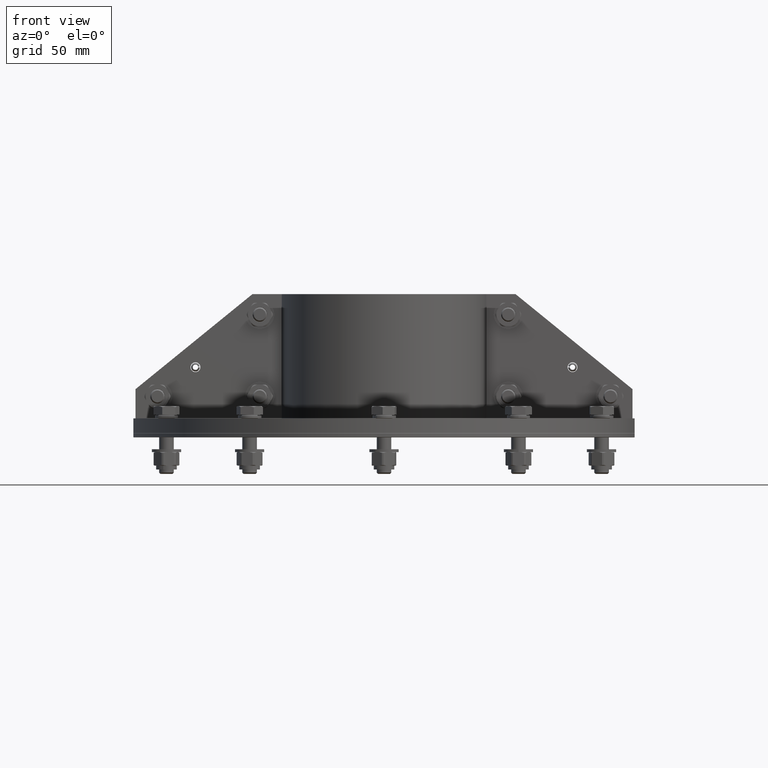
[diagram: clean part render]
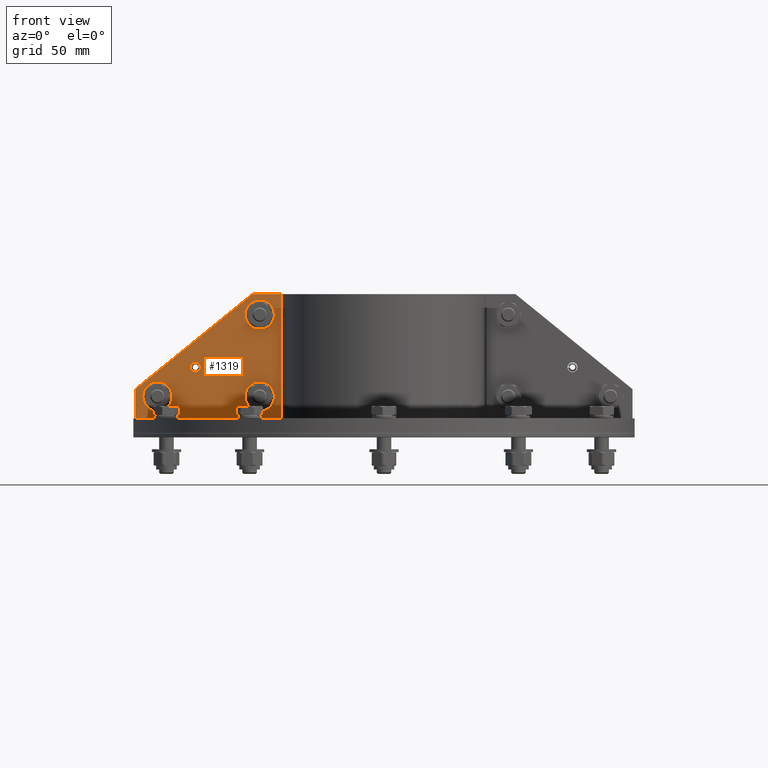
[diagram: same view with one face highlighted and labeled with its STEP entity id]
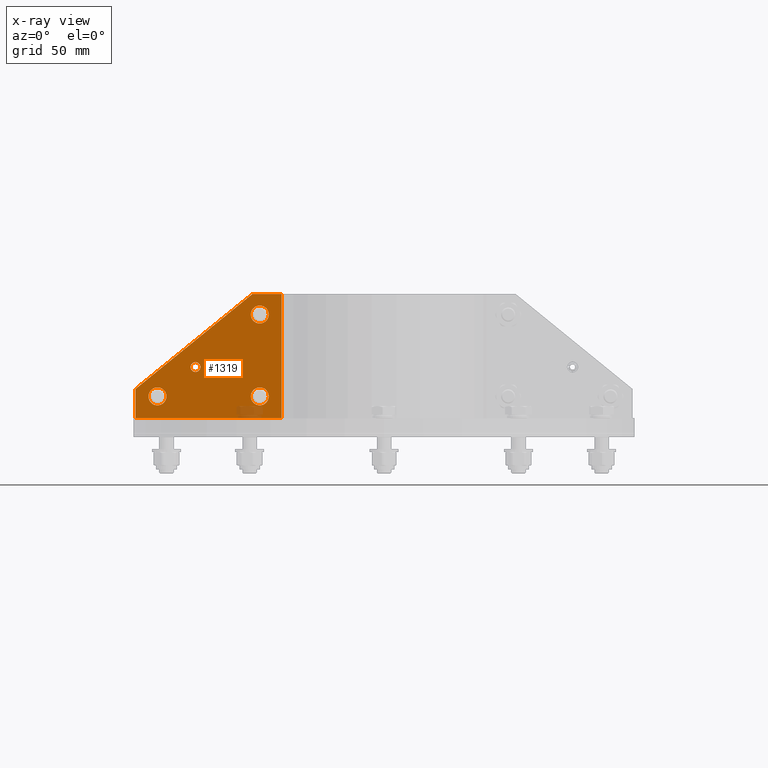
[diagram: x-ray of the same camera — body ghosted, the highlighted face saturated]
A machine part, front view. The second image highlights one B-rep face of the part: STEP entity #1319.
The next image is the same camera in x-ray: the body ghosted, the highlighted face saturated — about 3% of this face is hidden behind the body in this view.
In plain terms, the highlighted planar face has unit normal (-0, 1, -0).
Its self-contained STEP definition (entity closure, byte-faithful):
#1153=CARTESIAN_POINT('',(21.150000000000002,71.0,-5.0));
#1154=VERTEX_POINT('',#1153);
#1155=CARTESIAN_POINT('',(15.0,71.0,-5.0));
#1156=DIRECTION('',(0.0,0.0,1.0));
#1157=DIRECTION('',(-1.0,0.0,0.0));
#1158=AXIS2_PLACEMENT_3D('',#1155,#1156,#1157);
#1159=CIRCLE('',#1158,6.150000000000001);
#1160=EDGE_CURVE('',#1154,#1154,#1159,.T.);
#1181=CARTESIAN_POINT('',(91.150000000000006,15.000000000000002,-5.0));
#1182=VERTEX_POINT('',#1181);
#1183=CARTESIAN_POINT('',(85.0,15.000000000000002,-5.0));
#1184=DIRECTION('',(0.0,0.0,1.0));
#1185=DIRECTION('',(-1.0,0.0,0.0));
#1186=AXIS2_PLACEMENT_3D('',#1183,#1184,#1185);
#1187=CIRCLE('',#1186,6.150000000000001);
#1188=EDGE_CURVE('',#1182,#1182,#1187,.T.);
#1209=CARTESIAN_POINT('',(21.150000000000002,15.000000000000002,-5.0));
#1210=VERTEX_POINT('',#1209);
#1211=CARTESIAN_POINT('',(15.0,15.000000000000002,-5.0));
#1212=DIRECTION('',(0.0,0.0,1.0));
#1213=DIRECTION('',(-1.0,0.0,0.0));
#1214=AXIS2_PLACEMENT_3D('',#1211,#1212,#1213);
#1215=CIRCLE('',#1214,6.150000000000001);
#1216=EDGE_CURVE('',#1210,#1210,#1215,.T.);
#1237=CARTESIAN_POINT('',(62.350000000000001,35.0,-5.0));
#1238=VERTEX_POINT('',#1237);
#1239=CARTESIAN_POINT('',(59.0,35.0,-5.0));
#1240=DIRECTION('',(0.0,0.0,1.0));
#1241=DIRECTION('',(-1.0,0.0,0.0));
#1242=AXIS2_PLACEMENT_3D('',#1239,#1240,#1241);
#1243=CIRCLE('',#1242,3.35);
#1244=EDGE_CURVE('',#1238,#1238,#1243,.T.);
#1260=CARTESIAN_POINT('',(40.797228400869528,33.297228400869542,-5.0));
#1261=DIRECTION('',(0.0,0.0,1.0));
#1262=DIRECTION('',(1.0,0.0,0.0));
#1263=AXIS2_PLACEMENT_3D('',#1260,#1261,#1262);
#1264=PLANE('',#1263);
#1265=CARTESIAN_POINT('',(0.0,0.0,-5.0));
#1266=VERTEX_POINT('',#1265);
#1267=CARTESIAN_POINT('',(100.0,1.836970E-014,-5.0));
#1268=VERTEX_POINT('',#1267);
#1269=CARTESIAN_POINT('',(0.0,0.0,-5.0));
#1270=DIRECTION('',(1.0,0.0,0.0));
#1271=VECTOR('',#1270,100.0);
#1272=LINE('',#1269,#1271);
#1273=EDGE_CURVE('',#1266,#1268,#1272,.T.);
#1274=ORIENTED_EDGE('',*,*,#1273,.F.);
#1275=CARTESIAN_POINT('',(0.0,85.0,-5.0));
#1276=VERTEX_POINT('',#1275);
#1277=CARTESIAN_POINT('',(0.0,85.0,-5.0));
#1278=DIRECTION('',(0.0,-1.0,0.0));
#1279=VECTOR('',#1278,85.0);
#1280=LINE('',#1277,#1279);
#1281=EDGE_CURVE('',#1276,#1266,#1280,.T.);
#1282=ORIENTED_EDGE('',*,*,#1281,.F.);
#1283=CARTESIAN_POINT('',(20.0,85.0,-5.0));
#1284=VERTEX_POINT('',#1283);
#1285=CARTESIAN_POINT('',(20.0,85.0,-5.0));
#1286=DIRECTION('',(-1.0,0.0,0.0));
#1287=VECTOR('',#1286,20.0);
#1288=LINE('',#1285,#1287);
#1289=EDGE_CURVE('',#1284,#1276,#1288,.T.);
#1290=ORIENTED_EDGE('',*,*,#1289,.F.);
#1291=CARTESIAN_POINT('',(100.0,20.000000000000018,-5.0));
#1292=VERTEX_POINT('',#1291);
#1293=CARTESIAN_POINT('',(100.0,20.000000000000014,-5.0));
#1294=DIRECTION('',(-0.776114000116266,0.630592625094466,0.0));
#1295=VECTOR('',#1294,103.0776406404415);
#1296=LINE('',#1293,#1295);
#1297=EDGE_CURVE('',#1292,#1284,#1296,.T.);
#1298=ORIENTED_EDGE('',*,*,#1297,.F.);
#1299=CARTESIAN_POINT('',(100.0,1.776357E-014,-5.0));
#1300=DIRECTION('',(0.0,1.0,0.0));
#1301=VECTOR('',#1300,20.0);
#1302=LINE('',#1299,#1301);
#1303=EDGE_CURVE('',#1268,#1292,#1302,.T.);
#1304=ORIENTED_EDGE('',*,*,#1303,.F.);
#1305=EDGE_LOOP('',(#1274,#1282,#1290,#1298,#1304));
#1306=FACE_OUTER_BOUND('',#1305,.T.);
#1307=ORIENTED_EDGE('',*,*,#1160,.T.);
#1308=EDGE_LOOP('',(#1307));
#1309=FACE_BOUND('',#1308,.T.);
#1310=ORIENTED_EDGE('',*,*,#1188,.T.);
#1311=EDGE_LOOP('',(#1310));
#1312=FACE_BOUND('',#1311,.T.);
#1313=ORIENTED_EDGE('',*,*,#1216,.T.);
#1314=EDGE_LOOP('',(#1313));
#1315=FACE_BOUND('',#1314,.T.);
#1316=ORIENTED_EDGE('',*,*,#1244,.T.);
#1317=EDGE_LOOP('',(#1316));
#1318=FACE_BOUND('',#1317,.T.);
#1319=ADVANCED_FACE('',(#1306,#1309,#1312,#1315,#1318),#1264,.F.);